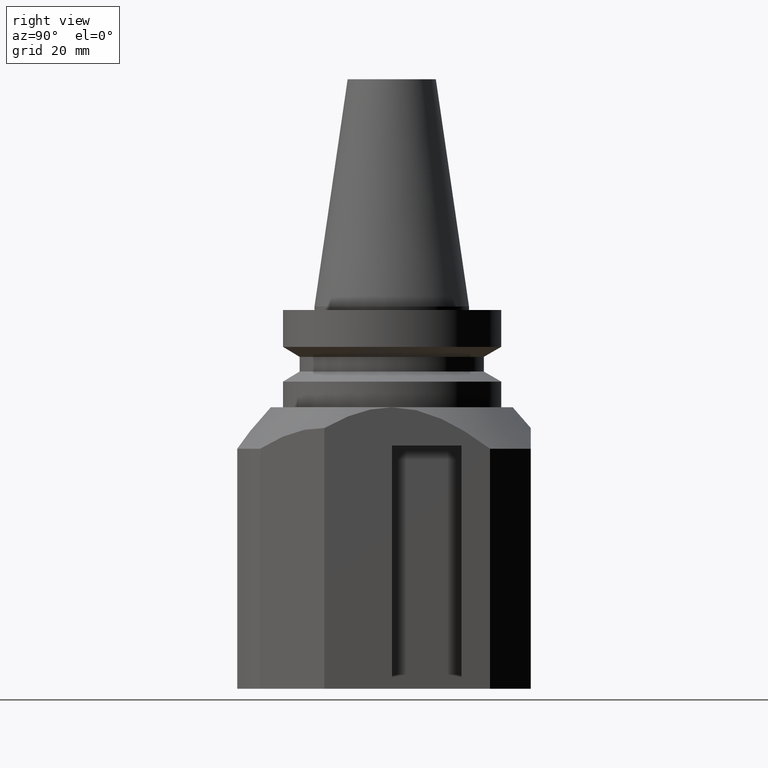
[diagram: clean part render]
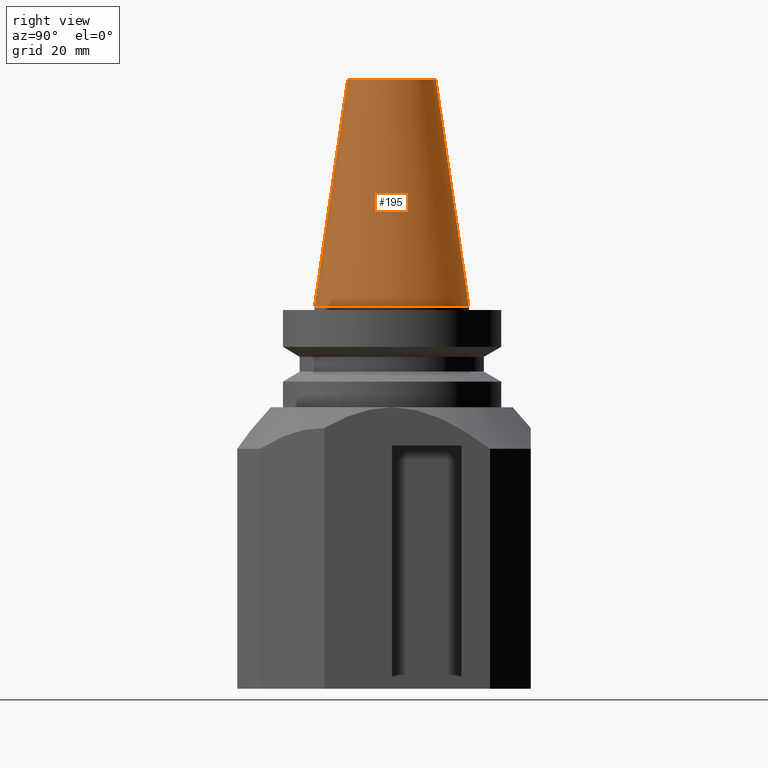
[diagram: same view with one face highlighted and labeled with its STEP entity id]
A machine part, right view. The second image highlights one B-rep face of the part: STEP entity #195.
In plain terms, the highlighted conical surface has half-angle 8.297 deg.
Its self-contained STEP definition (entity closure, byte-faithful):
#195=ADVANCED_FACE('Unnamed[1]',(#513,#514),#515,.T.);
#244=EDGE_CURVE('Unnamed[1]',#590,#590,#591,.T.);
#327=EDGE_CURVE('Unnamed[1]',#692,#692,#693,.T.);
#513=FACE_BOUND('',#934,.T.);
#514=FACE_BOUND('',#935,.T.);
#515=CONICAL_SURFACE('',#936,17.4562500000001,0.144812498238937);
#590=VERTEX_POINT('',#1050);
#591=CIRCLE('',#1051,22.225);
#692=VERTEX_POINT('',#1243);
#693=CIRCLE('',#1244,12.6875000000001);
#934=EDGE_LOOP('',(#1522));
#935=EDGE_LOOP('',(#1523));
#936=AXIS2_PLACEMENT_3D('',#1524,#1525,#1526);
#1050=CARTESIAN_POINT('',(8.16533253331491E-015,22.225,-1.52950813071785E-013));
#1051=AXIS2_PLACEMENT_3D('',#1587,#1588,#1589);
#1243=CARTESIAN_POINT('',(4.07026671781613E-014,12.6875000000001,65.4000000000001));
#1244=AXIS2_PLACEMENT_3D('',#1695,#1696,#1697);
#1522=ORIENTED_EDGE('',*,*,#327,.F.);
#1523=ORIENTED_EDGE('',*,*,#244,.T.);
#1524=CARTESIAN_POINT('',(1.80206776494533E-014,-2.59402400556469E-015,32.7));
#1525=DIRECTION('',(-5.51091059616309E-016,-2.69934471944602E-016,-1.0));
#1526=DIRECTION('',(3.67394039744206E-016,1.0,-2.69934471944602E-016));
#1587=CARTESIAN_POINT('',(-9.03421885091188E-029,-1.14208812381528E-014,-1.56319401867222E-013));
#1588=DIRECTION('',(5.51091059616309E-016,2.69934471944545E-016,1.0));
#1589=DIRECTION('',(3.67394039744206E-016,1.0,-2.69934471944545E-016));
#1695=CARTESIAN_POINT('',(3.60413552989067E-014,6.23283322702344E-015,65.4000000000001));
#1696=DIRECTION('',(5.51091059616309E-016,2.69934471944574E-016,1.0));
#1697=DIRECTION('',(3.67394039744206E-016,1.0,-2.69934471944575E-016));